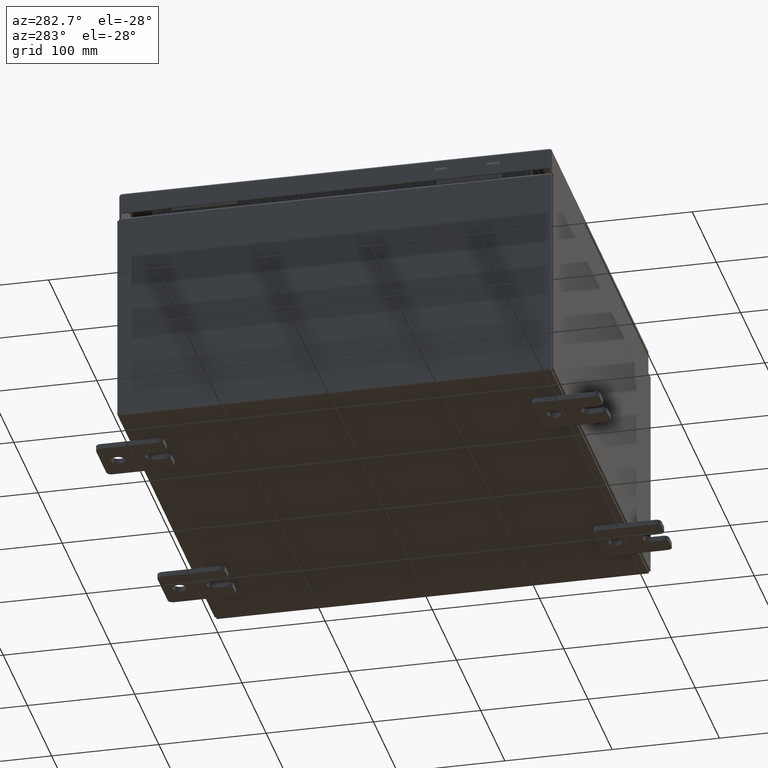
[diagram: clean part render]
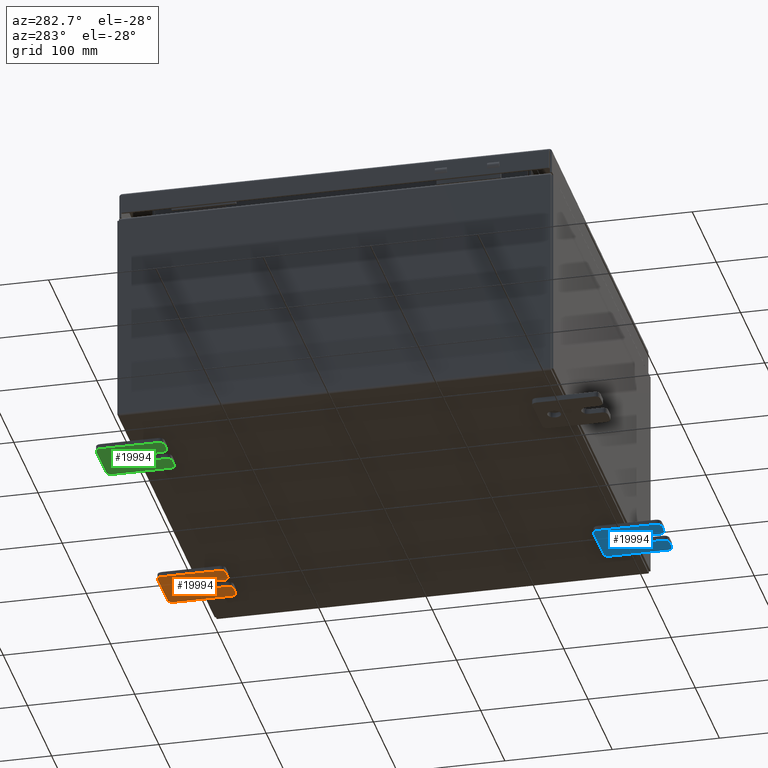
[diagram: same view with three faces highlighted in distinct colors, each labeled with its STEP entity id]
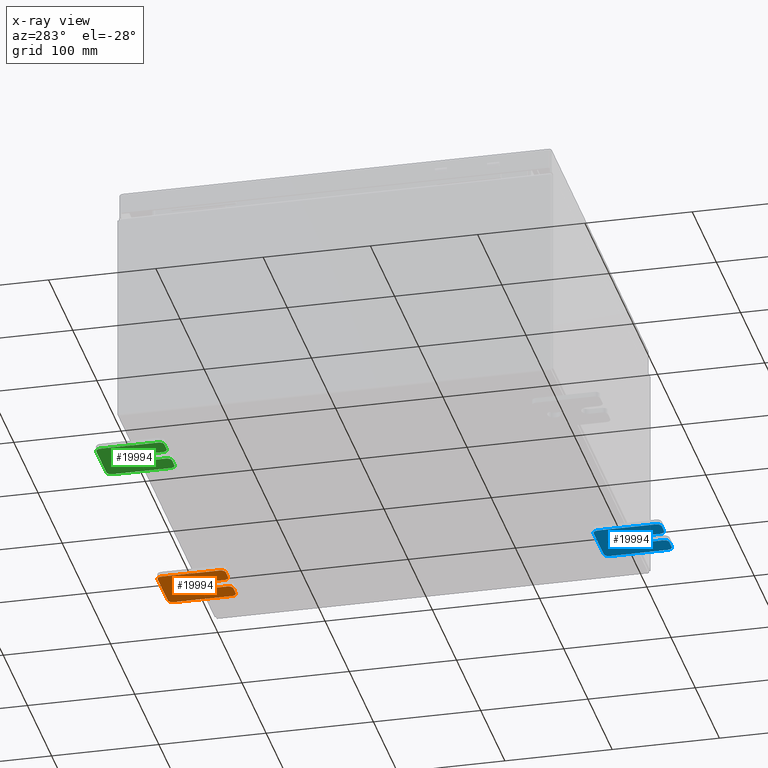
[diagram: x-ray of the same camera — body ghosted, the three highlighted faces saturated]
A machine part, auxiliary view with three faces highlighted in distinct colors.
The next image is the same camera in x-ray (body ghosted, the three faces saturated) — at least one of them is partly hidden behind the body in this view.
Their STEP definitions:

[orange] entity #19994 — the highlighted planar face has unit normal (0, 0, 1).
#79 = EDGE_CURVE ( 'NONE', #20972, #35876, #36916, .T. ) ;
#715 = CARTESIAN_POINT ( 'NONE',  ( -0.1879999999999997800, 1.059999999999996300, 0.8099999999999938400 ) ) ;
#2002 = ORIENTED_EDGE ( 'NONE', *, *, #60940, .F. ) ;
#2382 = ORIENTED_EDGE ( 'NONE', *, *, #22661, .T. ) ;
#2872 = CARTESIAN_POINT ( 'NONE',  ( -0.1879999999999997800, -1.060000000000001600, 0.8099999999999978300 ) ) ;
#3222 = EDGE_CURVE ( 'NONE', #32129, #20437, #37465, .T. ) ;
#5095 = LINE ( 'NONE', #39444, #54944 ) ;
#5543 = DIRECTION ( 'NONE',  ( 0.0000000000000000000, 0.0000000000000000000, -1.000000000000000000 ) ) ;
#5685 = DIRECTION ( 'NONE',  ( 0.0000000000000000000, 1.639108796198553600E-015, 1.000000000000000000 ) ) ;
#5850 = DIRECTION ( 'NONE',  ( 1.000000000000000000, -0.0000000000000000000, -5.163192708025532000E-017 ) ) ;
#6361 = DIRECTION ( 'NONE',  ( -1.000000000000000000, -0.0000000000000000000, 0.0000000000000000000 ) ) ;
#6433 = LINE ( 'NONE', #40358, #43433 ) ;
#7745 = DIRECTION ( 'NONE',  ( 0.0000000000000000000, 7.189073667537492800E-016, -1.000000000000000000 ) ) ;
#8680 = FACE_BOUND ( 'NONE', #60245, .T. ) ;
#9640 = AXIS2_PLACEMENT_3D ( 'NONE', #45761, #16925, #50645 ) ;
#10006 = CARTESIAN_POINT ( 'NONE',  ( -0.1879999999999997800, -1.060000000000001200, 0.9999999999999988900 ) ) ;
#10119 = DIRECTION ( 'NONE',  ( 0.0000000000000000000, -1.639108796198553600E-015, -1.000000000000000000 ) ) ;
#10180 = AXIS2_PLACEMENT_3D ( 'NONE', #35281, #6361, #40118 ) ;
#10258 = CARTESIAN_POINT ( 'NONE',  ( -0.1880000000000004700, -1.060000000000003400, -0.2499999999999994400 ) ) ;
#10269 = VECTOR ( 'NONE', #26384, 39.37007874015748100 ) ;
#11568 = EDGE_CURVE ( 'NONE', #16211, #51991, #20993, .T. ) ;
#13301 = CARTESIAN_POINT ( 'NONE',  ( -0.1880000000000001900, -0.6249999999999992200, 6.829619984160658000E-017 ) ) ;
#13367 = CARTESIAN_POINT ( 'NONE',  ( -0.1879999999999997800, 1.249999999999994700, -0.8100000000000092700 ) ) ;
#15666 = CIRCLE ( 'NONE', #50004, 0.2499999999999999200 ) ;
#16164 = DIRECTION ( 'NONE',  ( 1.000000000000000000, 0.0000000000000000000, -0.0000000000000000000 ) ) ;
#16211 = VERTEX_POINT ( 'NONE', #50140 ) ;
#16321 = AXIS2_PLACEMENT_3D ( 'NONE', #2872, #36615, #7745 ) ;
#16327 = ORIENTED_EDGE ( 'NONE', *, *, #32274, .F. ) ;
#16723 = CARTESIAN_POINT ( 'NONE',  ( -0.1879999999999997800, 1.249999999999997600, 0.9999999999999951200 ) ) ;
#16925 = DIRECTION ( 'NONE',  ( -1.000000000000000000, -0.0000000000000000000, 0.0000000000000000000 ) ) ;
#16959 = LINE ( 'NONE', #35529, #28230 ) ;
#17315 = EDGE_CURVE ( 'NONE', #40618, #36508, #15666, .T. ) ;
#17784 = AXIS2_PLACEMENT_3D ( 'NONE', #45232, #16164, #21245 ) ;
#18188 = DIRECTION ( 'NONE',  ( -6.829619984160660000E-016, -1.000000000000000000, 0.0000000000000000000 ) ) ;
#18373 = LINE ( 'NONE', #58260, #45473 ) ;
#19994 = ADVANCED_FACE ( 'NONE', ( #8680, #48682 ), #50089, .F. ) ;
#20393 = VERTEX_POINT ( 'NONE', #28940 ) ;
#20437 = VERTEX_POINT ( 'NONE', #48359 ) ;
#20907 = VERTEX_POINT ( 'NONE', #52708 ) ;
#20915 = CARTESIAN_POINT ( 'NONE',  ( -0.1880000000000010000, 0.6249999999999992200, -7.703811342100550500E-020 ) ) ;
#20972 = VERTEX_POINT ( 'NONE', #48464 ) ;
#20993 = CIRCLE ( 'NONE', #16321, 0.1900000000000011100 ) ;
#21161 = CIRCLE ( 'NONE', #44394, 0.1900000000000011100 ) ;
#21245 = DIRECTION ( 'NONE',  ( -0.0000000000000000000, 0.0000000000000000000, -1.000000000000000000 ) ) ;
#21343 = VERTEX_POINT ( 'NONE', #13367 ) ;
#21374 = ORIENTED_EDGE ( 'NONE', *, *, #11568, .T. ) ;
#21766 = EDGE_CURVE ( 'NONE', #20907, #22526, #31981, .T. ) ;
#21928 = DIRECTION ( 'NONE',  ( -1.000000000000000000, -0.0000000000000000000, 0.0000000000000000000 ) ) ;
#22526 = VERTEX_POINT ( 'NONE', #10258 ) ;
#22640 = CARTESIAN_POINT ( 'NONE',  ( -0.1879999999999997800, 1.059999999999996500, 0.9999999999999953400 ) ) ;
#22661 = EDGE_CURVE ( 'NONE', #21343, #50811, #57633, .T. ) ;
#23135 = LINE ( 'NONE', #16723, #10269 ) ;
#23220 = EDGE_CURVE ( 'NONE', #16211, #20437, #18373, .T. ) ;
#25709 = DIRECTION ( 'NONE',  ( 0.0000000000000000000, 0.0000000000000000000, -1.000000000000000000 ) ) ;
#26384 = DIRECTION ( 'NONE',  ( 0.0000000000000000000, -1.000000000000000000, 1.639108796198558100E-015 ) ) ;
#27639 = CARTESIAN_POINT ( 'NONE',  ( -0.1879999999999997800, -1.250000000000004700, -0.4400000000000002200 ) ) ;
#28230 = VECTOR ( 'NONE', #40376, 39.37007874015748100 ) ;
#28376 = ORIENTED_EDGE ( 'NONE', *, *, #40347, .T. ) ;
#28940 = CARTESIAN_POINT ( 'NONE',  ( -0.1880000000000001900, -0.6249999999999992200, 0.2500000000000005000 ) ) ;
#28948 = VECTOR ( 'NONE', #54021, 39.37007874015748100 ) ;
#30750 = ORIENTED_EDGE ( 'NONE', *, *, #43949, .F. ) ;
#30978 = EDGE_CURVE ( 'NONE', #21343, #56822, #5095, .T. ) ;
#31715 = CARTESIAN_POINT ( 'NONE',  ( -0.1880000000000010000, 0.6249999999999992200, 0.2499999999999999200 ) ) ;
#31981 = LINE ( 'NONE', #39447, #28948 ) ;
#32129 = VERTEX_POINT ( 'NONE', #53498 ) ;
#32274 = EDGE_CURVE ( 'NONE', #32129, #20393, #16959, .T. ) ;
#33118 = ORIENTED_EDGE ( 'NONE', *, *, #3222, .T. ) ;
#33933 = DIRECTION ( 'NONE',  ( 0.0000000000000000000, 1.000000000000000000, -1.639108796198558100E-015 ) ) ;
#34411 = VERTEX_POINT ( 'NONE', #27639 ) ;
#34476 = DIRECTION ( 'NONE',  ( -1.000000000000000000, -0.0000000000000000000, 0.0000000000000000000 ) ) ;
#34778 = CARTESIAN_POINT ( 'NONE',  ( -0.1880000000000010000, 0.6249999999999992200, -7.703811342100550500E-020 ) ) ;
#35111 = CARTESIAN_POINT ( 'NONE',  ( -0.1879999999999997800, -1.060000000000004100, -0.8100000000000050500 ) ) ;
#35281 = CARTESIAN_POINT ( 'NONE',  ( -0.1879999999999997800, 1.059999999999993600, -0.8100000000000089400 ) ) ;
#35529 = CARTESIAN_POINT ( 'NONE',  ( -0.1880000000000005800, -1.250000000000003800, 0.2500000000000005000 ) ) ;
#35876 = VERTEX_POINT ( 'NONE', #37754 ) ;
#36197 = AXIS2_PLACEMENT_3D ( 'NONE', #13301, #47018, #18188 ) ;
#36508 = VERTEX_POINT ( 'NONE', #31715 ) ;
#36615 = DIRECTION ( 'NONE',  ( -1.000000000000000000, -0.0000000000000000000, 0.0000000000000000000 ) ) ;
#36687 = ORIENTED_EDGE ( 'NONE', *, *, #17315, .T. ) ;
#36916 = CIRCLE ( 'NONE', #61683, 0.1900000000000011100 ) ;
#37134 = ORIENTED_EDGE ( 'NONE', *, *, #30978, .F. ) ;
#37465 = CIRCLE ( 'NONE', #9640, 0.1900000000000011400 ) ;
#37754 = CARTESIAN_POINT ( 'NONE',  ( -0.1879999999999997800, -1.250000000000005300, -0.8100000000000047200 ) ) ;
#37795 = EDGE_CURVE ( 'NONE', #34411, #22526, #21161, .T. ) ;
#38250 = EDGE_CURVE ( 'NONE', #20972, #50811, #47492, .T. ) ;
#39444 = CARTESIAN_POINT ( 'NONE',  ( -0.1879999999999997800, 1.249999999999994200, -1.000000000000010400 ) ) ;
#39447 = CARTESIAN_POINT ( 'NONE',  ( -0.1880000000000001900, -0.6249999999999992200, -0.2499999999999993900 ) ) ;
#39599 = DIRECTION ( 'NONE',  ( 0.0000000000000000000, 0.0000000000000000000, -1.000000000000000000 ) ) ;
#40118 = DIRECTION ( 'NONE',  ( 0.0000000000000000000, 0.0000000000000000000, -1.000000000000000000 ) ) ;
#40347 = EDGE_CURVE ( 'NONE', #36508, #40618, #61093, .T. ) ;
#40358 = CARTESIAN_POINT ( 'NONE',  ( -0.1879999999999997800, -1.250000000000002200, 0.9999999999999992200 ) ) ;
#40376 = DIRECTION ( 'NONE',  ( 6.556435184794182400E-016, 1.000000000000000000, 0.0000000000000000000 ) ) ;
#40618 = VERTEX_POINT ( 'NONE', #53952 ) ;
#41021 = VERTEX_POINT ( 'NONE', #22640 ) ;
#41778 = ORIENTED_EDGE ( 'NONE', *, *, #45190, .T. ) ;
#43433 = VECTOR ( 'NONE', #49866, 39.37007874015748100 ) ;
#43835 = ORIENTED_EDGE ( 'NONE', *, *, #37795, .T. ) ;
#43949 = EDGE_CURVE ( 'NONE', #41021, #51991, #23135, .T. ) ;
#44394 = AXIS2_PLACEMENT_3D ( 'NONE', #50806, #21928, #55653 ) ;
#44461 = VECTOR ( 'NONE', #33933, 39.37007874015748100 ) ;
#44624 = EDGE_LOOP ( 'NONE', ( #45203, #21374, #30750, #41778, #37134, #2382, #60888, #59481, #2002, #43835, #57215, #61633, #16327, #33118 ) ) ;
#45190 = EDGE_CURVE ( 'NONE', #41021, #56822, #57035, .T. ) ;
#45203 = ORIENTED_EDGE ( 'NONE', *, *, #23220, .F. ) ;
#45232 = CARTESIAN_POINT ( 'NONE',  ( -0.1879999999999997800, 0.0000000000000000000, 0.0000000000000000000 ) ) ;
#45473 = VECTOR ( 'NONE', #10119, 39.37007874015748100 ) ;
#45761 = CARTESIAN_POINT ( 'NONE',  ( -0.1879999999999997800, -1.060000000000002100, 0.4400000000000016700 ) ) ;
#47018 = DIRECTION ( 'NONE',  ( -1.000000000000000000, 6.523827964459549700E-016, 5.163192708025532000E-017 ) ) ;
#47492 = LINE ( 'NONE', #53121, #44461 ) ;
#48359 = CARTESIAN_POINT ( 'NONE',  ( -0.1879999999999997800, -1.250000000000003100, 0.4400000000000020000 ) ) ;
#48464 = CARTESIAN_POINT ( 'NONE',  ( -0.1879999999999997800, -1.060000000000004500, -1.000000000000006400 ) ) ;
#48682 = FACE_OUTER_BOUND ( 'NONE', #44624, .T. ) ;
#49866 = DIRECTION ( 'NONE',  ( 0.0000000000000000000, -1.639108796198553600E-015, -1.000000000000000000 ) ) ;
#50004 = AXIS2_PLACEMENT_3D ( 'NONE', #20915, #54620, #25709 ) ;
#50089 = PLANE ( 'NONE',  #17784 ) ;
#50140 = CARTESIAN_POINT ( 'NONE',  ( -0.1879999999999997800, -1.250000000000002400, 0.8099999999999980500 ) ) ;
#50645 = DIRECTION ( 'NONE',  ( 0.0000000000000000000, 0.0000000000000000000, -1.000000000000000000 ) ) ;
#50806 = CARTESIAN_POINT ( 'NONE',  ( -0.1879999999999997800, -1.060000000000003400, -0.4400000000000005000 ) ) ;
#50811 = VERTEX_POINT ( 'NONE', #56148 ) ;
#51821 = CARTESIAN_POINT ( 'NONE',  ( -0.1879999999999997800, 1.249999999999997300, 0.8099999999999935000 ) ) ;
#51991 = VERTEX_POINT ( 'NONE', #10006 ) ;
#52030 = DIRECTION ( 'NONE',  ( -1.000000000000000000, -0.0000000000000000000, 0.0000000000000000000 ) ) ;
#52708 = CARTESIAN_POINT ( 'NONE',  ( -0.1880000000000001900, -0.6249999999999992200, -0.2499999999999998600 ) ) ;
#53121 = CARTESIAN_POINT ( 'NONE',  ( -0.1879999999999997800, -1.250000000000005600, -1.000000000000006200 ) ) ;
#53498 = CARTESIAN_POINT ( 'NONE',  ( -0.1880000000000004700, -1.060000000000002100, 0.2500000000000005000 ) ) ;
#53952 = CARTESIAN_POINT ( 'NONE',  ( -0.1880000000000010000, 0.6249999999999992200, -0.2499999999999999200 ) ) ;
#54021 = DIRECTION ( 'NONE',  ( -6.556435184794182400E-016, -1.000000000000000000, -1.639108796198545600E-016 ) ) ;
#54620 = DIRECTION ( 'NONE',  ( 1.000000000000000000, -0.0000000000000000000, -5.163192708025532000E-017 ) ) ;
#54944 = VECTOR ( 'NONE', #5685, 39.37007874015748100 ) ;
#55405 = AXIS2_PLACEMENT_3D ( 'NONE', #34778, #5850, #39599 ) ;
#55653 = DIRECTION ( 'NONE',  ( 0.0000000000000000000, 0.0000000000000000000, -1.000000000000000000 ) ) ;
#55964 = AXIS2_PLACEMENT_3D ( 'NONE', #715, #34476, #5543 ) ;
#56148 = CARTESIAN_POINT ( 'NONE',  ( -0.1879999999999997800, 1.059999999999993400, -1.000000000000010000 ) ) ;
#56822 = VERTEX_POINT ( 'NONE', #51821 ) ;
#57035 = CIRCLE ( 'NONE', #55964, 0.1900000000000011100 ) ;
#57215 = ORIENTED_EDGE ( 'NONE', *, *, #21766, .F. ) ;
#57633 = CIRCLE ( 'NONE', #10180, 0.1900000000000011100 ) ;
#58260 = CARTESIAN_POINT ( 'NONE',  ( -0.1879999999999997800, -1.250000000000002200, 0.9999999999999992200 ) ) ;
#59481 = ORIENTED_EDGE ( 'NONE', *, *, #79, .T. ) ;
#60245 = EDGE_LOOP ( 'NONE', ( #36687, #28376 ) ) ;
#60522 = DIRECTION ( 'NONE',  ( 0.0000000000000000000, 0.0000000000000000000, -1.000000000000000000 ) ) ;
#60776 = CIRCLE ( 'NONE', #36197, 0.2499999999999999200 ) ;
#60888 = ORIENTED_EDGE ( 'NONE', *, *, #38250, .F. ) ;
#60940 = EDGE_CURVE ( 'NONE', #34411, #35876, #6433, .T. ) ;
#61093 = CIRCLE ( 'NONE', #55405, 0.2499999999999999200 ) ;
#61633 = ORIENTED_EDGE ( 'NONE', *, *, #61876, .F. ) ;
#61683 = AXIS2_PLACEMENT_3D ( 'NONE', #35111, #52030, #60522 ) ;
#61876 = EDGE_CURVE ( 'NONE', #20393, #20907, #60776, .T. ) ;

[blue] entity #19994 — the highlighted planar face has unit normal (0, 0, 1).
#79 = EDGE_CURVE ( 'NONE', #20972, #35876, #36916, .T. ) ;
#715 = CARTESIAN_POINT ( 'NONE',  ( -0.1879999999999997800, 1.059999999999996300, 0.8099999999999938400 ) ) ;
#2002 = ORIENTED_EDGE ( 'NONE', *, *, #60940, .F. ) ;
#2382 = ORIENTED_EDGE ( 'NONE', *, *, #22661, .T. ) ;
#2872 = CARTESIAN_POINT ( 'NONE',  ( -0.1879999999999997800, -1.060000000000001600, 0.8099999999999978300 ) ) ;
#3222 = EDGE_CURVE ( 'NONE', #32129, #20437, #37465, .T. ) ;
#5095 = LINE ( 'NONE', #39444, #54944 ) ;
#5543 = DIRECTION ( 'NONE',  ( 0.0000000000000000000, 0.0000000000000000000, -1.000000000000000000 ) ) ;
#5685 = DIRECTION ( 'NONE',  ( 0.0000000000000000000, 1.639108796198553600E-015, 1.000000000000000000 ) ) ;
#5850 = DIRECTION ( 'NONE',  ( 1.000000000000000000, -0.0000000000000000000, -5.163192708025532000E-017 ) ) ;
#6361 = DIRECTION ( 'NONE',  ( -1.000000000000000000, -0.0000000000000000000, 0.0000000000000000000 ) ) ;
#6433 = LINE ( 'NONE', #40358, #43433 ) ;
#7745 = DIRECTION ( 'NONE',  ( 0.0000000000000000000, 7.189073667537492800E-016, -1.000000000000000000 ) ) ;
#8680 = FACE_BOUND ( 'NONE', #60245, .T. ) ;
#9640 = AXIS2_PLACEMENT_3D ( 'NONE', #45761, #16925, #50645 ) ;
#10006 = CARTESIAN_POINT ( 'NONE',  ( -0.1879999999999997800, -1.060000000000001200, 0.9999999999999988900 ) ) ;
#10119 = DIRECTION ( 'NONE',  ( 0.0000000000000000000, -1.639108796198553600E-015, -1.000000000000000000 ) ) ;
#10180 = AXIS2_PLACEMENT_3D ( 'NONE', #35281, #6361, #40118 ) ;
#10258 = CARTESIAN_POINT ( 'NONE',  ( -0.1880000000000004700, -1.060000000000003400, -0.2499999999999994400 ) ) ;
#10269 = VECTOR ( 'NONE', #26384, 39.37007874015748100 ) ;
#11568 = EDGE_CURVE ( 'NONE', #16211, #51991, #20993, .T. ) ;
#13301 = CARTESIAN_POINT ( 'NONE',  ( -0.1880000000000001900, -0.6249999999999992200, 6.829619984160658000E-017 ) ) ;
#13367 = CARTESIAN_POINT ( 'NONE',  ( -0.1879999999999997800, 1.249999999999994700, -0.8100000000000092700 ) ) ;
#15666 = CIRCLE ( 'NONE', #50004, 0.2499999999999999200 ) ;
#16164 = DIRECTION ( 'NONE',  ( 1.000000000000000000, 0.0000000000000000000, -0.0000000000000000000 ) ) ;
#16211 = VERTEX_POINT ( 'NONE', #50140 ) ;
#16321 = AXIS2_PLACEMENT_3D ( 'NONE', #2872, #36615, #7745 ) ;
#16327 = ORIENTED_EDGE ( 'NONE', *, *, #32274, .F. ) ;
#16723 = CARTESIAN_POINT ( 'NONE',  ( -0.1879999999999997800, 1.249999999999997600, 0.9999999999999951200 ) ) ;
#16925 = DIRECTION ( 'NONE',  ( -1.000000000000000000, -0.0000000000000000000, 0.0000000000000000000 ) ) ;
#16959 = LINE ( 'NONE', #35529, #28230 ) ;
#17315 = EDGE_CURVE ( 'NONE', #40618, #36508, #15666, .T. ) ;
#17784 = AXIS2_PLACEMENT_3D ( 'NONE', #45232, #16164, #21245 ) ;
#18188 = DIRECTION ( 'NONE',  ( -6.829619984160660000E-016, -1.000000000000000000, 0.0000000000000000000 ) ) ;
#18373 = LINE ( 'NONE', #58260, #45473 ) ;
#19994 = ADVANCED_FACE ( 'NONE', ( #8680, #48682 ), #50089, .F. ) ;
#20393 = VERTEX_POINT ( 'NONE', #28940 ) ;
#20437 = VERTEX_POINT ( 'NONE', #48359 ) ;
#20907 = VERTEX_POINT ( 'NONE', #52708 ) ;
#20915 = CARTESIAN_POINT ( 'NONE',  ( -0.1880000000000010000, 0.6249999999999992200, -7.703811342100550500E-020 ) ) ;
#20972 = VERTEX_POINT ( 'NONE', #48464 ) ;
#20993 = CIRCLE ( 'NONE', #16321, 0.1900000000000011100 ) ;
#21161 = CIRCLE ( 'NONE', #44394, 0.1900000000000011100 ) ;
#21245 = DIRECTION ( 'NONE',  ( -0.0000000000000000000, 0.0000000000000000000, -1.000000000000000000 ) ) ;
#21343 = VERTEX_POINT ( 'NONE', #13367 ) ;
#21374 = ORIENTED_EDGE ( 'NONE', *, *, #11568, .T. ) ;
#21766 = EDGE_CURVE ( 'NONE', #20907, #22526, #31981, .T. ) ;
#21928 = DIRECTION ( 'NONE',  ( -1.000000000000000000, -0.0000000000000000000, 0.0000000000000000000 ) ) ;
#22526 = VERTEX_POINT ( 'NONE', #10258 ) ;
#22640 = CARTESIAN_POINT ( 'NONE',  ( -0.1879999999999997800, 1.059999999999996500, 0.9999999999999953400 ) ) ;
#22661 = EDGE_CURVE ( 'NONE', #21343, #50811, #57633, .T. ) ;
#23135 = LINE ( 'NONE', #16723, #10269 ) ;
#23220 = EDGE_CURVE ( 'NONE', #16211, #20437, #18373, .T. ) ;
#25709 = DIRECTION ( 'NONE',  ( 0.0000000000000000000, 0.0000000000000000000, -1.000000000000000000 ) ) ;
#26384 = DIRECTION ( 'NONE',  ( 0.0000000000000000000, -1.000000000000000000, 1.639108796198558100E-015 ) ) ;
#27639 = CARTESIAN_POINT ( 'NONE',  ( -0.1879999999999997800, -1.250000000000004700, -0.4400000000000002200 ) ) ;
#28230 = VECTOR ( 'NONE', #40376, 39.37007874015748100 ) ;
#28376 = ORIENTED_EDGE ( 'NONE', *, *, #40347, .T. ) ;
#28940 = CARTESIAN_POINT ( 'NONE',  ( -0.1880000000000001900, -0.6249999999999992200, 0.2500000000000005000 ) ) ;
#28948 = VECTOR ( 'NONE', #54021, 39.37007874015748100 ) ;
#30750 = ORIENTED_EDGE ( 'NONE', *, *, #43949, .F. ) ;
#30978 = EDGE_CURVE ( 'NONE', #21343, #56822, #5095, .T. ) ;
#31715 = CARTESIAN_POINT ( 'NONE',  ( -0.1880000000000010000, 0.6249999999999992200, 0.2499999999999999200 ) ) ;
#31981 = LINE ( 'NONE', #39447, #28948 ) ;
#32129 = VERTEX_POINT ( 'NONE', #53498 ) ;
#32274 = EDGE_CURVE ( 'NONE', #32129, #20393, #16959, .T. ) ;
#33118 = ORIENTED_EDGE ( 'NONE', *, *, #3222, .T. ) ;
#33933 = DIRECTION ( 'NONE',  ( 0.0000000000000000000, 1.000000000000000000, -1.639108796198558100E-015 ) ) ;
#34411 = VERTEX_POINT ( 'NONE', #27639 ) ;
#34476 = DIRECTION ( 'NONE',  ( -1.000000000000000000, -0.0000000000000000000, 0.0000000000000000000 ) ) ;
#34778 = CARTESIAN_POINT ( 'NONE',  ( -0.1880000000000010000, 0.6249999999999992200, -7.703811342100550500E-020 ) ) ;
#35111 = CARTESIAN_POINT ( 'NONE',  ( -0.1879999999999997800, -1.060000000000004100, -0.8100000000000050500 ) ) ;
#35281 = CARTESIAN_POINT ( 'NONE',  ( -0.1879999999999997800, 1.059999999999993600, -0.8100000000000089400 ) ) ;
#35529 = CARTESIAN_POINT ( 'NONE',  ( -0.1880000000000005800, -1.250000000000003800, 0.2500000000000005000 ) ) ;
#35876 = VERTEX_POINT ( 'NONE', #37754 ) ;
#36197 = AXIS2_PLACEMENT_3D ( 'NONE', #13301, #47018, #18188 ) ;
#36508 = VERTEX_POINT ( 'NONE', #31715 ) ;
#36615 = DIRECTION ( 'NONE',  ( -1.000000000000000000, -0.0000000000000000000, 0.0000000000000000000 ) ) ;
#36687 = ORIENTED_EDGE ( 'NONE', *, *, #17315, .T. ) ;
#36916 = CIRCLE ( 'NONE', #61683, 0.1900000000000011100 ) ;
#37134 = ORIENTED_EDGE ( 'NONE', *, *, #30978, .F. ) ;
#37465 = CIRCLE ( 'NONE', #9640, 0.1900000000000011400 ) ;
#37754 = CARTESIAN_POINT ( 'NONE',  ( -0.1879999999999997800, -1.250000000000005300, -0.8100000000000047200 ) ) ;
#37795 = EDGE_CURVE ( 'NONE', #34411, #22526, #21161, .T. ) ;
#38250 = EDGE_CURVE ( 'NONE', #20972, #50811, #47492, .T. ) ;
#39444 = CARTESIAN_POINT ( 'NONE',  ( -0.1879999999999997800, 1.249999999999994200, -1.000000000000010400 ) ) ;
#39447 = CARTESIAN_POINT ( 'NONE',  ( -0.1880000000000001900, -0.6249999999999992200, -0.2499999999999993900 ) ) ;
#39599 = DIRECTION ( 'NONE',  ( 0.0000000000000000000, 0.0000000000000000000, -1.000000000000000000 ) ) ;
#40118 = DIRECTION ( 'NONE',  ( 0.0000000000000000000, 0.0000000000000000000, -1.000000000000000000 ) ) ;
#40347 = EDGE_CURVE ( 'NONE', #36508, #40618, #61093, .T. ) ;
#40358 = CARTESIAN_POINT ( 'NONE',  ( -0.1879999999999997800, -1.250000000000002200, 0.9999999999999992200 ) ) ;
#40376 = DIRECTION ( 'NONE',  ( 6.556435184794182400E-016, 1.000000000000000000, 0.0000000000000000000 ) ) ;
#40618 = VERTEX_POINT ( 'NONE', #53952 ) ;
#41021 = VERTEX_POINT ( 'NONE', #22640 ) ;
#41778 = ORIENTED_EDGE ( 'NONE', *, *, #45190, .T. ) ;
#43433 = VECTOR ( 'NONE', #49866, 39.37007874015748100 ) ;
#43835 = ORIENTED_EDGE ( 'NONE', *, *, #37795, .T. ) ;
#43949 = EDGE_CURVE ( 'NONE', #41021, #51991, #23135, .T. ) ;
#44394 = AXIS2_PLACEMENT_3D ( 'NONE', #50806, #21928, #55653 ) ;
#44461 = VECTOR ( 'NONE', #33933, 39.37007874015748100 ) ;
#44624 = EDGE_LOOP ( 'NONE', ( #45203, #21374, #30750, #41778, #37134, #2382, #60888, #59481, #2002, #43835, #57215, #61633, #16327, #33118 ) ) ;
#45190 = EDGE_CURVE ( 'NONE', #41021, #56822, #57035, .T. ) ;
#45203 = ORIENTED_EDGE ( 'NONE', *, *, #23220, .F. ) ;
#45232 = CARTESIAN_POINT ( 'NONE',  ( -0.1879999999999997800, 0.0000000000000000000, 0.0000000000000000000 ) ) ;
#45473 = VECTOR ( 'NONE', #10119, 39.37007874015748100 ) ;
#45761 = CARTESIAN_POINT ( 'NONE',  ( -0.1879999999999997800, -1.060000000000002100, 0.4400000000000016700 ) ) ;
#47018 = DIRECTION ( 'NONE',  ( -1.000000000000000000, 6.523827964459549700E-016, 5.163192708025532000E-017 ) ) ;
#47492 = LINE ( 'NONE', #53121, #44461 ) ;
#48359 = CARTESIAN_POINT ( 'NONE',  ( -0.1879999999999997800, -1.250000000000003100, 0.4400000000000020000 ) ) ;
#48464 = CARTESIAN_POINT ( 'NONE',  ( -0.1879999999999997800, -1.060000000000004500, -1.000000000000006400 ) ) ;
#48682 = FACE_OUTER_BOUND ( 'NONE', #44624, .T. ) ;
#49866 = DIRECTION ( 'NONE',  ( 0.0000000000000000000, -1.639108796198553600E-015, -1.000000000000000000 ) ) ;
#50004 = AXIS2_PLACEMENT_3D ( 'NONE', #20915, #54620, #25709 ) ;
#50089 = PLANE ( 'NONE',  #17784 ) ;
#50140 = CARTESIAN_POINT ( 'NONE',  ( -0.1879999999999997800, -1.250000000000002400, 0.8099999999999980500 ) ) ;
#50645 = DIRECTION ( 'NONE',  ( 0.0000000000000000000, 0.0000000000000000000, -1.000000000000000000 ) ) ;
#50806 = CARTESIAN_POINT ( 'NONE',  ( -0.1879999999999997800, -1.060000000000003400, -0.4400000000000005000 ) ) ;
#50811 = VERTEX_POINT ( 'NONE', #56148 ) ;
#51821 = CARTESIAN_POINT ( 'NONE',  ( -0.1879999999999997800, 1.249999999999997300, 0.8099999999999935000 ) ) ;
#51991 = VERTEX_POINT ( 'NONE', #10006 ) ;
#52030 = DIRECTION ( 'NONE',  ( -1.000000000000000000, -0.0000000000000000000, 0.0000000000000000000 ) ) ;
#52708 = CARTESIAN_POINT ( 'NONE',  ( -0.1880000000000001900, -0.6249999999999992200, -0.2499999999999998600 ) ) ;
#53121 = CARTESIAN_POINT ( 'NONE',  ( -0.1879999999999997800, -1.250000000000005600, -1.000000000000006200 ) ) ;
#53498 = CARTESIAN_POINT ( 'NONE',  ( -0.1880000000000004700, -1.060000000000002100, 0.2500000000000005000 ) ) ;
#53952 = CARTESIAN_POINT ( 'NONE',  ( -0.1880000000000010000, 0.6249999999999992200, -0.2499999999999999200 ) ) ;
#54021 = DIRECTION ( 'NONE',  ( -6.556435184794182400E-016, -1.000000000000000000, -1.639108796198545600E-016 ) ) ;
#54620 = DIRECTION ( 'NONE',  ( 1.000000000000000000, -0.0000000000000000000, -5.163192708025532000E-017 ) ) ;
#54944 = VECTOR ( 'NONE', #5685, 39.37007874015748100 ) ;
#55405 = AXIS2_PLACEMENT_3D ( 'NONE', #34778, #5850, #39599 ) ;
#55653 = DIRECTION ( 'NONE',  ( 0.0000000000000000000, 0.0000000000000000000, -1.000000000000000000 ) ) ;
#55964 = AXIS2_PLACEMENT_3D ( 'NONE', #715, #34476, #5543 ) ;
#56148 = CARTESIAN_POINT ( 'NONE',  ( -0.1879999999999997800, 1.059999999999993400, -1.000000000000010000 ) ) ;
#56822 = VERTEX_POINT ( 'NONE', #51821 ) ;
#57035 = CIRCLE ( 'NONE', #55964, 0.1900000000000011100 ) ;
#57215 = ORIENTED_EDGE ( 'NONE', *, *, #21766, .F. ) ;
#57633 = CIRCLE ( 'NONE', #10180, 0.1900000000000011100 ) ;
#58260 = CARTESIAN_POINT ( 'NONE',  ( -0.1879999999999997800, -1.250000000000002200, 0.9999999999999992200 ) ) ;
#59481 = ORIENTED_EDGE ( 'NONE', *, *, #79, .T. ) ;
#60245 = EDGE_LOOP ( 'NONE', ( #36687, #28376 ) ) ;
#60522 = DIRECTION ( 'NONE',  ( 0.0000000000000000000, 0.0000000000000000000, -1.000000000000000000 ) ) ;
#60776 = CIRCLE ( 'NONE', #36197, 0.2499999999999999200 ) ;
#60888 = ORIENTED_EDGE ( 'NONE', *, *, #38250, .F. ) ;
#60940 = EDGE_CURVE ( 'NONE', #34411, #35876, #6433, .T. ) ;
#61093 = CIRCLE ( 'NONE', #55405, 0.2499999999999999200 ) ;
#61633 = ORIENTED_EDGE ( 'NONE', *, *, #61876, .F. ) ;
#61683 = AXIS2_PLACEMENT_3D ( 'NONE', #35111, #52030, #60522 ) ;
#61876 = EDGE_CURVE ( 'NONE', #20393, #20907, #60776, .T. ) ;

[green] entity #19994 — the highlighted planar face has unit normal (0, 0, 1).
#79 = EDGE_CURVE ( 'NONE', #20972, #35876, #36916, .T. ) ;
#715 = CARTESIAN_POINT ( 'NONE',  ( -0.1879999999999997800, 1.059999999999996300, 0.8099999999999938400 ) ) ;
#2002 = ORIENTED_EDGE ( 'NONE', *, *, #60940, .F. ) ;
#2382 = ORIENTED_EDGE ( 'NONE', *, *, #22661, .T. ) ;
#2872 = CARTESIAN_POINT ( 'NONE',  ( -0.1879999999999997800, -1.060000000000001600, 0.8099999999999978300 ) ) ;
#3222 = EDGE_CURVE ( 'NONE', #32129, #20437, #37465, .T. ) ;
#5095 = LINE ( 'NONE', #39444, #54944 ) ;
#5543 = DIRECTION ( 'NONE',  ( 0.0000000000000000000, 0.0000000000000000000, -1.000000000000000000 ) ) ;
#5685 = DIRECTION ( 'NONE',  ( 0.0000000000000000000, 1.639108796198553600E-015, 1.000000000000000000 ) ) ;
#5850 = DIRECTION ( 'NONE',  ( 1.000000000000000000, -0.0000000000000000000, -5.163192708025532000E-017 ) ) ;
#6361 = DIRECTION ( 'NONE',  ( -1.000000000000000000, -0.0000000000000000000, 0.0000000000000000000 ) ) ;
#6433 = LINE ( 'NONE', #40358, #43433 ) ;
#7745 = DIRECTION ( 'NONE',  ( 0.0000000000000000000, 7.189073667537492800E-016, -1.000000000000000000 ) ) ;
#8680 = FACE_BOUND ( 'NONE', #60245, .T. ) ;
#9640 = AXIS2_PLACEMENT_3D ( 'NONE', #45761, #16925, #50645 ) ;
#10006 = CARTESIAN_POINT ( 'NONE',  ( -0.1879999999999997800, -1.060000000000001200, 0.9999999999999988900 ) ) ;
#10119 = DIRECTION ( 'NONE',  ( 0.0000000000000000000, -1.639108796198553600E-015, -1.000000000000000000 ) ) ;
#10180 = AXIS2_PLACEMENT_3D ( 'NONE', #35281, #6361, #40118 ) ;
#10258 = CARTESIAN_POINT ( 'NONE',  ( -0.1880000000000004700, -1.060000000000003400, -0.2499999999999994400 ) ) ;
#10269 = VECTOR ( 'NONE', #26384, 39.37007874015748100 ) ;
#11568 = EDGE_CURVE ( 'NONE', #16211, #51991, #20993, .T. ) ;
#13301 = CARTESIAN_POINT ( 'NONE',  ( -0.1880000000000001900, -0.6249999999999992200, 6.829619984160658000E-017 ) ) ;
#13367 = CARTESIAN_POINT ( 'NONE',  ( -0.1879999999999997800, 1.249999999999994700, -0.8100000000000092700 ) ) ;
#15666 = CIRCLE ( 'NONE', #50004, 0.2499999999999999200 ) ;
#16164 = DIRECTION ( 'NONE',  ( 1.000000000000000000, 0.0000000000000000000, -0.0000000000000000000 ) ) ;
#16211 = VERTEX_POINT ( 'NONE', #50140 ) ;
#16321 = AXIS2_PLACEMENT_3D ( 'NONE', #2872, #36615, #7745 ) ;
#16327 = ORIENTED_EDGE ( 'NONE', *, *, #32274, .F. ) ;
#16723 = CARTESIAN_POINT ( 'NONE',  ( -0.1879999999999997800, 1.249999999999997600, 0.9999999999999951200 ) ) ;
#16925 = DIRECTION ( 'NONE',  ( -1.000000000000000000, -0.0000000000000000000, 0.0000000000000000000 ) ) ;
#16959 = LINE ( 'NONE', #35529, #28230 ) ;
#17315 = EDGE_CURVE ( 'NONE', #40618, #36508, #15666, .T. ) ;
#17784 = AXIS2_PLACEMENT_3D ( 'NONE', #45232, #16164, #21245 ) ;
#18188 = DIRECTION ( 'NONE',  ( -6.829619984160660000E-016, -1.000000000000000000, 0.0000000000000000000 ) ) ;
#18373 = LINE ( 'NONE', #58260, #45473 ) ;
#19994 = ADVANCED_FACE ( 'NONE', ( #8680, #48682 ), #50089, .F. ) ;
#20393 = VERTEX_POINT ( 'NONE', #28940 ) ;
#20437 = VERTEX_POINT ( 'NONE', #48359 ) ;
#20907 = VERTEX_POINT ( 'NONE', #52708 ) ;
#20915 = CARTESIAN_POINT ( 'NONE',  ( -0.1880000000000010000, 0.6249999999999992200, -7.703811342100550500E-020 ) ) ;
#20972 = VERTEX_POINT ( 'NONE', #48464 ) ;
#20993 = CIRCLE ( 'NONE', #16321, 0.1900000000000011100 ) ;
#21161 = CIRCLE ( 'NONE', #44394, 0.1900000000000011100 ) ;
#21245 = DIRECTION ( 'NONE',  ( -0.0000000000000000000, 0.0000000000000000000, -1.000000000000000000 ) ) ;
#21343 = VERTEX_POINT ( 'NONE', #13367 ) ;
#21374 = ORIENTED_EDGE ( 'NONE', *, *, #11568, .T. ) ;
#21766 = EDGE_CURVE ( 'NONE', #20907, #22526, #31981, .T. ) ;
#21928 = DIRECTION ( 'NONE',  ( -1.000000000000000000, -0.0000000000000000000, 0.0000000000000000000 ) ) ;
#22526 = VERTEX_POINT ( 'NONE', #10258 ) ;
#22640 = CARTESIAN_POINT ( 'NONE',  ( -0.1879999999999997800, 1.059999999999996500, 0.9999999999999953400 ) ) ;
#22661 = EDGE_CURVE ( 'NONE', #21343, #50811, #57633, .T. ) ;
#23135 = LINE ( 'NONE', #16723, #10269 ) ;
#23220 = EDGE_CURVE ( 'NONE', #16211, #20437, #18373, .T. ) ;
#25709 = DIRECTION ( 'NONE',  ( 0.0000000000000000000, 0.0000000000000000000, -1.000000000000000000 ) ) ;
#26384 = DIRECTION ( 'NONE',  ( 0.0000000000000000000, -1.000000000000000000, 1.639108796198558100E-015 ) ) ;
#27639 = CARTESIAN_POINT ( 'NONE',  ( -0.1879999999999997800, -1.250000000000004700, -0.4400000000000002200 ) ) ;
#28230 = VECTOR ( 'NONE', #40376, 39.37007874015748100 ) ;
#28376 = ORIENTED_EDGE ( 'NONE', *, *, #40347, .T. ) ;
#28940 = CARTESIAN_POINT ( 'NONE',  ( -0.1880000000000001900, -0.6249999999999992200, 0.2500000000000005000 ) ) ;
#28948 = VECTOR ( 'NONE', #54021, 39.37007874015748100 ) ;
#30750 = ORIENTED_EDGE ( 'NONE', *, *, #43949, .F. ) ;
#30978 = EDGE_CURVE ( 'NONE', #21343, #56822, #5095, .T. ) ;
#31715 = CARTESIAN_POINT ( 'NONE',  ( -0.1880000000000010000, 0.6249999999999992200, 0.2499999999999999200 ) ) ;
#31981 = LINE ( 'NONE', #39447, #28948 ) ;
#32129 = VERTEX_POINT ( 'NONE', #53498 ) ;
#32274 = EDGE_CURVE ( 'NONE', #32129, #20393, #16959, .T. ) ;
#33118 = ORIENTED_EDGE ( 'NONE', *, *, #3222, .T. ) ;
#33933 = DIRECTION ( 'NONE',  ( 0.0000000000000000000, 1.000000000000000000, -1.639108796198558100E-015 ) ) ;
#34411 = VERTEX_POINT ( 'NONE', #27639 ) ;
#34476 = DIRECTION ( 'NONE',  ( -1.000000000000000000, -0.0000000000000000000, 0.0000000000000000000 ) ) ;
#34778 = CARTESIAN_POINT ( 'NONE',  ( -0.1880000000000010000, 0.6249999999999992200, -7.703811342100550500E-020 ) ) ;
#35111 = CARTESIAN_POINT ( 'NONE',  ( -0.1879999999999997800, -1.060000000000004100, -0.8100000000000050500 ) ) ;
#35281 = CARTESIAN_POINT ( 'NONE',  ( -0.1879999999999997800, 1.059999999999993600, -0.8100000000000089400 ) ) ;
#35529 = CARTESIAN_POINT ( 'NONE',  ( -0.1880000000000005800, -1.250000000000003800, 0.2500000000000005000 ) ) ;
#35876 = VERTEX_POINT ( 'NONE', #37754 ) ;
#36197 = AXIS2_PLACEMENT_3D ( 'NONE', #13301, #47018, #18188 ) ;
#36508 = VERTEX_POINT ( 'NONE', #31715 ) ;
#36615 = DIRECTION ( 'NONE',  ( -1.000000000000000000, -0.0000000000000000000, 0.0000000000000000000 ) ) ;
#36687 = ORIENTED_EDGE ( 'NONE', *, *, #17315, .T. ) ;
#36916 = CIRCLE ( 'NONE', #61683, 0.1900000000000011100 ) ;
#37134 = ORIENTED_EDGE ( 'NONE', *, *, #30978, .F. ) ;
#37465 = CIRCLE ( 'NONE', #9640, 0.1900000000000011400 ) ;
#37754 = CARTESIAN_POINT ( 'NONE',  ( -0.1879999999999997800, -1.250000000000005300, -0.8100000000000047200 ) ) ;
#37795 = EDGE_CURVE ( 'NONE', #34411, #22526, #21161, .T. ) ;
#38250 = EDGE_CURVE ( 'NONE', #20972, #50811, #47492, .T. ) ;
#39444 = CARTESIAN_POINT ( 'NONE',  ( -0.1879999999999997800, 1.249999999999994200, -1.000000000000010400 ) ) ;
#39447 = CARTESIAN_POINT ( 'NONE',  ( -0.1880000000000001900, -0.6249999999999992200, -0.2499999999999993900 ) ) ;
#39599 = DIRECTION ( 'NONE',  ( 0.0000000000000000000, 0.0000000000000000000, -1.000000000000000000 ) ) ;
#40118 = DIRECTION ( 'NONE',  ( 0.0000000000000000000, 0.0000000000000000000, -1.000000000000000000 ) ) ;
#40347 = EDGE_CURVE ( 'NONE', #36508, #40618, #61093, .T. ) ;
#40358 = CARTESIAN_POINT ( 'NONE',  ( -0.1879999999999997800, -1.250000000000002200, 0.9999999999999992200 ) ) ;
#40376 = DIRECTION ( 'NONE',  ( 6.556435184794182400E-016, 1.000000000000000000, 0.0000000000000000000 ) ) ;
#40618 = VERTEX_POINT ( 'NONE', #53952 ) ;
#41021 = VERTEX_POINT ( 'NONE', #22640 ) ;
#41778 = ORIENTED_EDGE ( 'NONE', *, *, #45190, .T. ) ;
#43433 = VECTOR ( 'NONE', #49866, 39.37007874015748100 ) ;
#43835 = ORIENTED_EDGE ( 'NONE', *, *, #37795, .T. ) ;
#43949 = EDGE_CURVE ( 'NONE', #41021, #51991, #23135, .T. ) ;
#44394 = AXIS2_PLACEMENT_3D ( 'NONE', #50806, #21928, #55653 ) ;
#44461 = VECTOR ( 'NONE', #33933, 39.37007874015748100 ) ;
#44624 = EDGE_LOOP ( 'NONE', ( #45203, #21374, #30750, #41778, #37134, #2382, #60888, #59481, #2002, #43835, #57215, #61633, #16327, #33118 ) ) ;
#45190 = EDGE_CURVE ( 'NONE', #41021, #56822, #57035, .T. ) ;
#45203 = ORIENTED_EDGE ( 'NONE', *, *, #23220, .F. ) ;
#45232 = CARTESIAN_POINT ( 'NONE',  ( -0.1879999999999997800, 0.0000000000000000000, 0.0000000000000000000 ) ) ;
#45473 = VECTOR ( 'NONE', #10119, 39.37007874015748100 ) ;
#45761 = CARTESIAN_POINT ( 'NONE',  ( -0.1879999999999997800, -1.060000000000002100, 0.4400000000000016700 ) ) ;
#47018 = DIRECTION ( 'NONE',  ( -1.000000000000000000, 6.523827964459549700E-016, 5.163192708025532000E-017 ) ) ;
#47492 = LINE ( 'NONE', #53121, #44461 ) ;
#48359 = CARTESIAN_POINT ( 'NONE',  ( -0.1879999999999997800, -1.250000000000003100, 0.4400000000000020000 ) ) ;
#48464 = CARTESIAN_POINT ( 'NONE',  ( -0.1879999999999997800, -1.060000000000004500, -1.000000000000006400 ) ) ;
#48682 = FACE_OUTER_BOUND ( 'NONE', #44624, .T. ) ;
#49866 = DIRECTION ( 'NONE',  ( 0.0000000000000000000, -1.639108796198553600E-015, -1.000000000000000000 ) ) ;
#50004 = AXIS2_PLACEMENT_3D ( 'NONE', #20915, #54620, #25709 ) ;
#50089 = PLANE ( 'NONE',  #17784 ) ;
#50140 = CARTESIAN_POINT ( 'NONE',  ( -0.1879999999999997800, -1.250000000000002400, 0.8099999999999980500 ) ) ;
#50645 = DIRECTION ( 'NONE',  ( 0.0000000000000000000, 0.0000000000000000000, -1.000000000000000000 ) ) ;
#50806 = CARTESIAN_POINT ( 'NONE',  ( -0.1879999999999997800, -1.060000000000003400, -0.4400000000000005000 ) ) ;
#50811 = VERTEX_POINT ( 'NONE', #56148 ) ;
#51821 = CARTESIAN_POINT ( 'NONE',  ( -0.1879999999999997800, 1.249999999999997300, 0.8099999999999935000 ) ) ;
#51991 = VERTEX_POINT ( 'NONE', #10006 ) ;
#52030 = DIRECTION ( 'NONE',  ( -1.000000000000000000, -0.0000000000000000000, 0.0000000000000000000 ) ) ;
#52708 = CARTESIAN_POINT ( 'NONE',  ( -0.1880000000000001900, -0.6249999999999992200, -0.2499999999999998600 ) ) ;
#53121 = CARTESIAN_POINT ( 'NONE',  ( -0.1879999999999997800, -1.250000000000005600, -1.000000000000006200 ) ) ;
#53498 = CARTESIAN_POINT ( 'NONE',  ( -0.1880000000000004700, -1.060000000000002100, 0.2500000000000005000 ) ) ;
#53952 = CARTESIAN_POINT ( 'NONE',  ( -0.1880000000000010000, 0.6249999999999992200, -0.2499999999999999200 ) ) ;
#54021 = DIRECTION ( 'NONE',  ( -6.556435184794182400E-016, -1.000000000000000000, -1.639108796198545600E-016 ) ) ;
#54620 = DIRECTION ( 'NONE',  ( 1.000000000000000000, -0.0000000000000000000, -5.163192708025532000E-017 ) ) ;
#54944 = VECTOR ( 'NONE', #5685, 39.37007874015748100 ) ;
#55405 = AXIS2_PLACEMENT_3D ( 'NONE', #34778, #5850, #39599 ) ;
#55653 = DIRECTION ( 'NONE',  ( 0.0000000000000000000, 0.0000000000000000000, -1.000000000000000000 ) ) ;
#55964 = AXIS2_PLACEMENT_3D ( 'NONE', #715, #34476, #5543 ) ;
#56148 = CARTESIAN_POINT ( 'NONE',  ( -0.1879999999999997800, 1.059999999999993400, -1.000000000000010000 ) ) ;
#56822 = VERTEX_POINT ( 'NONE', #51821 ) ;
#57035 = CIRCLE ( 'NONE', #55964, 0.1900000000000011100 ) ;
#57215 = ORIENTED_EDGE ( 'NONE', *, *, #21766, .F. ) ;
#57633 = CIRCLE ( 'NONE', #10180, 0.1900000000000011100 ) ;
#58260 = CARTESIAN_POINT ( 'NONE',  ( -0.1879999999999997800, -1.250000000000002200, 0.9999999999999992200 ) ) ;
#59481 = ORIENTED_EDGE ( 'NONE', *, *, #79, .T. ) ;
#60245 = EDGE_LOOP ( 'NONE', ( #36687, #28376 ) ) ;
#60522 = DIRECTION ( 'NONE',  ( 0.0000000000000000000, 0.0000000000000000000, -1.000000000000000000 ) ) ;
#60776 = CIRCLE ( 'NONE', #36197, 0.2499999999999999200 ) ;
#60888 = ORIENTED_EDGE ( 'NONE', *, *, #38250, .F. ) ;
#60940 = EDGE_CURVE ( 'NONE', #34411, #35876, #6433, .T. ) ;
#61093 = CIRCLE ( 'NONE', #55405, 0.2499999999999999200 ) ;
#61633 = ORIENTED_EDGE ( 'NONE', *, *, #61876, .F. ) ;
#61683 = AXIS2_PLACEMENT_3D ( 'NONE', #35111, #52030, #60522 ) ;
#61876 = EDGE_CURVE ( 'NONE', #20393, #20907, #60776, .T. ) ;